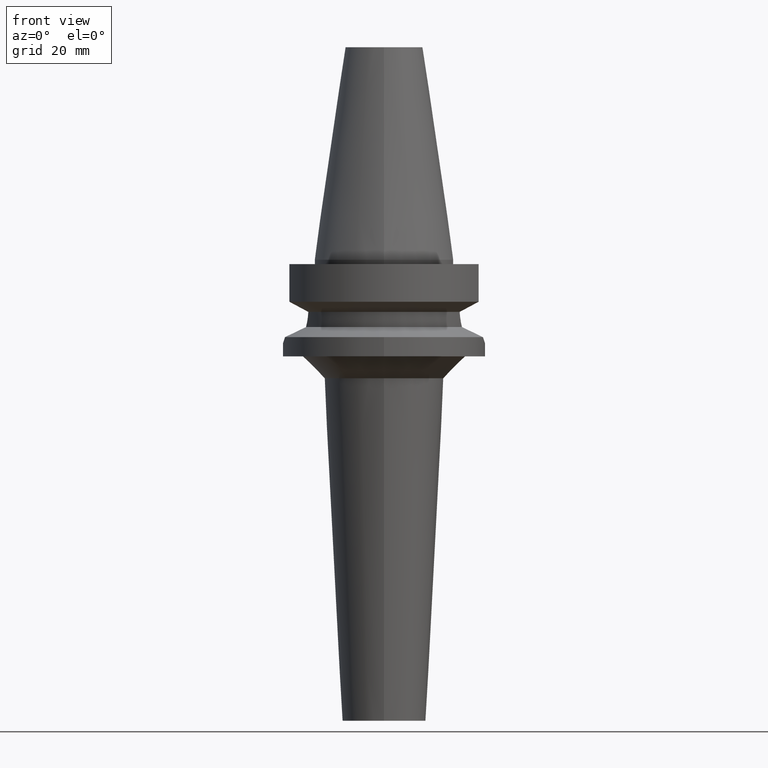
[diagram: clean part render]
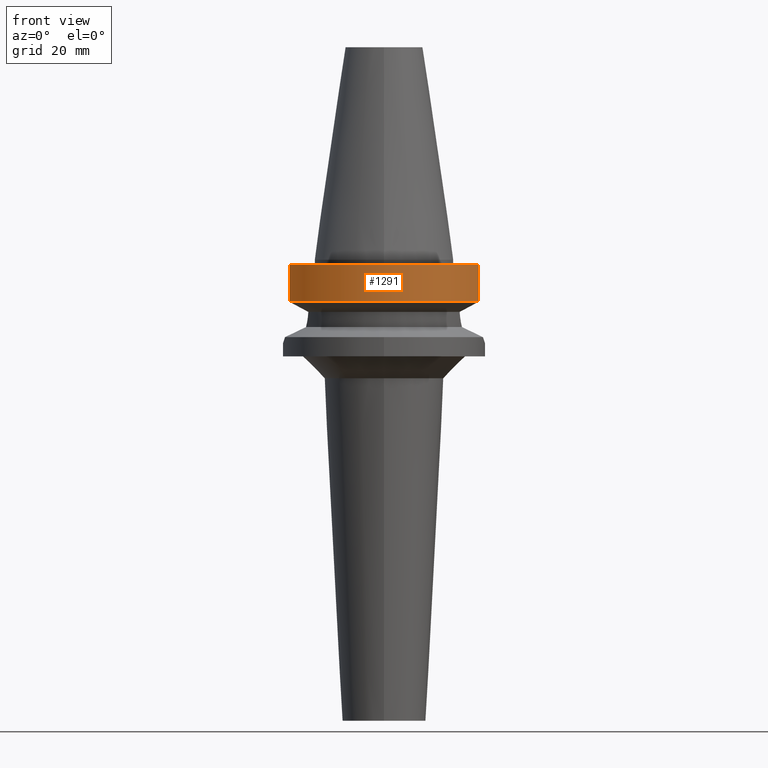
[diagram: same view with one face highlighted and labeled with its STEP entity id]
A machine part, front view. The second image highlights one B-rep face of the part: STEP entity #1291.
In plain terms, the highlighted cylindrical surface (partial cylindrical patch) has radius 23 mm, axis along (0, 0, -1).
Its self-contained STEP definition (entity closure, byte-faithful):
#138=CARTESIAN_POINT('',(0.E0,1.911306259429E-14,-1.E0));
#139=DIRECTION('',(0.E0,0.E0,-1.E0));
#140=DIRECTION('',(9.367496997598E-1,-3.5E-1,0.E0));
#141=AXIS2_PLACEMENT_3D('',#138,#139,#140);
#146=CARTESIAN_POINT('',(0.E0,1.911306259429E-14,-1.E0));
#147=DIRECTION('',(0.E0,0.E0,-1.E0));
#148=DIRECTION('',(0.E0,-1.E0,0.E0));
#149=AXIS2_PLACEMENT_3D('',#146,#147,#148);
#200=CARTESIAN_POINT('',(-2.154524325238E1,-8.049999577366E0,
-9.567211146629E0));
#217=CARTESIAN_POINT('',(0.E0,1.093341284897E-14,-9.567208369711E0));
#218=DIRECTION('',(0.E0,0.E0,1.E0));
#219=DIRECTION('',(-9.367496997597E-1,-3.500000000001E-1,0.E0));
#220=AXIS2_PLACEMENT_3D('',#217,#218,#219);
#225=CARTESIAN_POINT('',(0.E0,1.093341284897E-14,-9.567208369711E0));
#226=DIRECTION('',(0.E0,0.E0,1.E0));
#227=DIRECTION('',(0.E0,-1.E0,0.E0));
#228=AXIS2_PLACEMENT_3D('',#225,#226,#227);
#269=DIRECTION('',(1.843189971013E-8,-4.933165846938E-8,1.E0));
#270=VECTOR('',#269,8.567211146629E0);
#271=CARTESIAN_POINT('',(-2.154524325238E1,-8.049999577366E0,
-9.567211146629E0));
#272=LINE('',#271,#270);
#276=DIRECTION('',(-9.134802486953E-8,-2.444862507564E-7,-1.E0));
#277=VECTOR('',#276,8.567194606554E0);
#278=CARTESIAN_POINT('',(2.154524309447E1,-8.05E0,-1.E0));
#279=LINE('',#278,#277);
#1078=VERTEX_POINT('',#200);
#1079=CARTESIAN_POINT('',(0.E0,-2.3E1,-9.567208369711E0));
#1080=CARTESIAN_POINT('',(2.154524309447E1,-8.050000000001E0,
-9.567208369711E0));
#1081=VERTEX_POINT('',#1079);
#1082=VERTEX_POINT('',#1080);
#1089=CARTESIAN_POINT('',(-2.154524309447E1,-8.05E0,-1.E0));
#1090=VERTEX_POINT('',#1089);
#1103=CARTESIAN_POINT('',(2.154524309447E1,-8.05E0,-1.E0));
#1104=VERTEX_POINT('',#1103);
#1105=CARTESIAN_POINT('',(0.E0,-2.3E1,-1.E0));
#1106=VERTEX_POINT('',#1105);
#1277=CARTESIAN_POINT('',(0.E0,1.911306259429E-14,5.607E1));
#1278=DIRECTION('',(0.E0,0.E0,-1.E0));
#1279=DIRECTION('',(0.E0,-1.E0,0.E0));
#1280=AXIS2_PLACEMENT_3D('',#1277,#1278,#1279);
#1281=CYLINDRICAL_SURFACE('',#1280,2.3E1);
#1282=ORIENTED_EDGE('',*,*,#1249,.T.);
#1283=ORIENTED_EDGE('',*,*,#1210,.F.);
#1284=ORIENTED_EDGE('',*,*,#1208,.F.);
#1286=ORIENTED_EDGE('',*,*,#1285,.T.);
#1287=ORIENTED_EDGE('',*,*,#1262,.F.);
#1288=ORIENTED_EDGE('',*,*,#1260,.F.);
#1289=EDGE_LOOP('',(#1282,#1283,#1284,#1286,#1287,#1288));
#1290=FACE_OUTER_BOUND('',#1289,.F.);
#142=CIRCLE('',#141,2.3E1);
#150=CIRCLE('',#149,2.3E1);
#221=CIRCLE('',#220,2.3E1);
#229=CIRCLE('',#228,2.3E1);
#1208=EDGE_CURVE('',#1104,#1106,#142,.T.);
#1210=EDGE_CURVE('',#1106,#1090,#150,.T.);
#1249=EDGE_CURVE('',#1078,#1090,#272,.T.);
#1260=EDGE_CURVE('',#1078,#1081,#221,.T.);
#1262=EDGE_CURVE('',#1081,#1082,#229,.T.);
#1285=EDGE_CURVE('',#1104,#1082,#279,.T.);
#1291=ADVANCED_FACE('',(#1290),#1281,.T.);